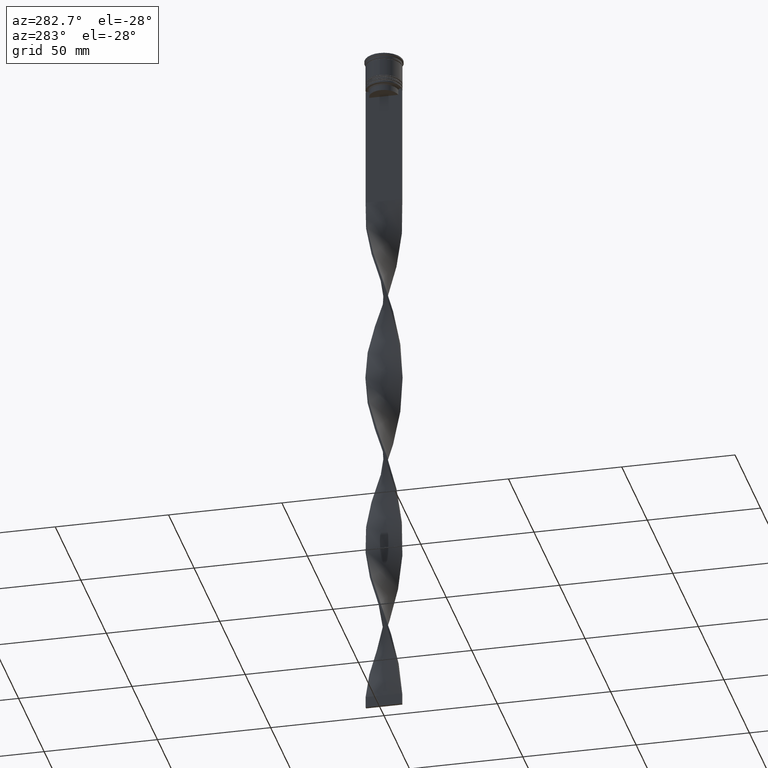
[diagram: clean part render]
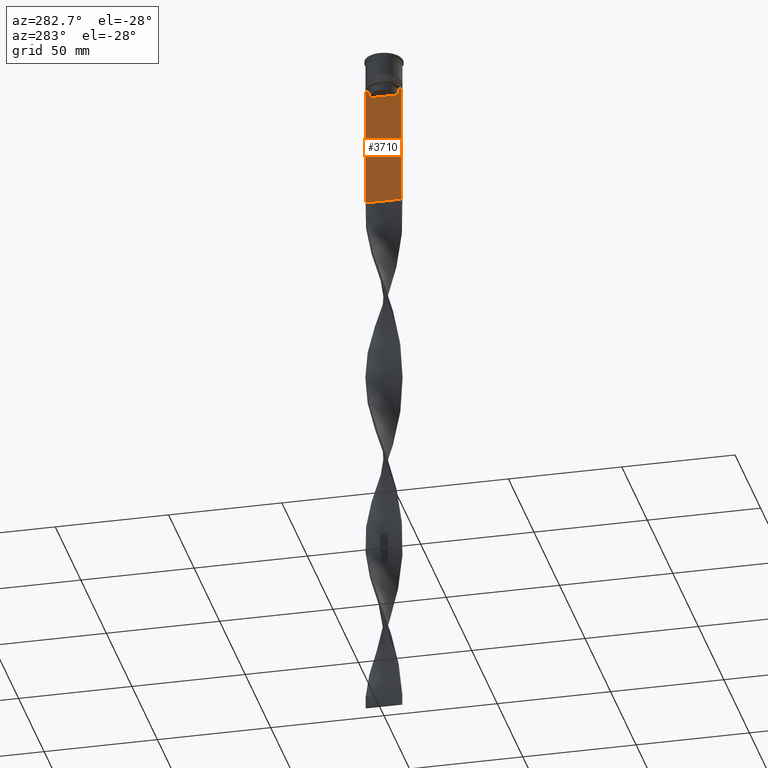
[diagram: same view with one face highlighted and labeled with its STEP entity id]
A machine part, auxiliary view. The second image highlights one B-rep face of the part: STEP entity #3710.
In plain terms, the highlighted planar face has unit normal (-1, 0, 0).
Its self-contained STEP definition (entity closure, byte-faithful):
#54 = CARTESIAN_POINT ( 'NONE',  ( -0.4999999999999998890, -8.000000000000003553, 2.031219541881394530 ) ) ;
#89 = LINE ( 'NONE', #3666, #294 ) ;
#97 = VERTEX_POINT ( 'NONE', #2014 ) ;
#131 = ORIENTED_EDGE ( 'NONE', *, *, #2130, .F. ) ;
#224 = VECTOR ( 'NONE', #3896, 1000.000000000000000 ) ;
#275 = EDGE_CURVE ( 'NONE', #740, #2712, #3811, .T. ) ;
#294 = VECTOR ( 'NONE', #401, 1000.000000000000000 ) ;
#313 = DIRECTION ( 'NONE',  ( 0.000000000000000000, -1.000000000000000000, 0.000000000000000000 ) ) ;
#376 = CARTESIAN_POINT ( 'NONE',  ( -0.4999999999999998890, -6.881860213634098500, -14.00000000000000178 ) ) ;
#401 = DIRECTION ( 'NONE',  ( 0.000000000000000000, 0.000000000000000000, -1.000000000000000000 ) ) ;
#433 = VERTEX_POINT ( 'NONE', #3204 ) ;
#489 = CARTESIAN_POINT ( 'NONE',  ( -0.4999999999999998890, -6.714736947305992132, -14.16668390685738999 ) ) ;
#510 = CARTESIAN_POINT ( 'NONE',  ( -0.4999999999999998890, 6.547597841304911626, -14.33335192459222718 ) ) ;
#529 = DIRECTION ( 'NONE',  ( -0.000000000000000000, -0.000000000000000000, 1.000000000000000000 ) ) ;
#652 = VERTEX_POINT ( 'NONE', #3047 ) ;
#657 = CARTESIAN_POINT ( 'NONE',  ( -0.4999999999999998890, 7.999999999999996447, -68.00000000000000000 ) ) ;
#676 = ORIENTED_EDGE ( 'NONE', *, *, #725, .F. ) ;
#725 = EDGE_CURVE ( 'NONE', #2712, #3300, #1589, .T. ) ;
#740 = VERTEX_POINT ( 'NONE', #376 ) ;
#743 = PLANE ( 'NONE',  #3954 ) ;
#770 = DIRECTION ( 'NONE',  ( -1.000000000000000000, 0.000000000000000000, 0.000000000000000000 ) ) ;
#800 = VERTEX_POINT ( 'NONE', #2883 ) ;
#834 = EDGE_CURVE ( 'NONE', #97, #433, #89, .T. ) ;
#852 = DIRECTION ( 'NONE',  ( 0.000000000000000000, -1.000000000000000000, 0.000000000000000000 ) ) ;
#871 = EDGE_CURVE ( 'NONE', #3300, #997, #1666, .T. ) ;
#900 = EDGE_CURVE ( 'NONE', #800, #2819, #3252, .T. ) ;
#964 = CARTESIAN_POINT ( 'NONE',  ( -0.4999999999999998890, 7.999999999999996447, 2.031219541881394530 ) ) ;
#992 = EDGE_CURVE ( 'NONE', #997, #2318, #3274, .T. ) ;
#997 = VERTEX_POINT ( 'NONE', #1360 ) ;
#1000 = DIRECTION ( 'NONE',  ( 0.000000000000000000, 1.000000000000000000, 0.000000000000000000 ) ) ;
#1049 = CARTESIAN_POINT ( 'NONE',  ( -0.4999999999999998890, -8.000000000000003553, 2.031219541881394530 ) ) ;
#1093 = CARTESIAN_POINT ( 'NONE',  ( -0.4999999999999998890, -6.380438856379708312, -14.50000000000000000 ) ) ;
#1100 = CARTESIAN_POINT ( 'NONE',  ( -0.4999999999999998890, 7.884161337770806632, -14.00000000000000178 ) ) ;
#1149 = VECTOR ( 'NONE', #313, 1000.000000000000000 ) ;
#1177 = CARTESIAN_POINT ( 'NONE',  ( -0.4999999999999998890, -8.000000000000003553, -14.00000000000000178 ) ) ;
#1314 = FACE_OUTER_BOUND ( 'NONE', #3007, .T. ) ;
#1360 = CARTESIAN_POINT ( 'NONE',  ( -0.4999999999999998890, -8.000000000000003553, -68.00000000000000000 ) ) ;
#1400 = CARTESIAN_POINT ( 'NONE',  ( -0.4999999999999998890, -8.000000000000003553, -68.00000000000000000 ) ) ;
#1554 = ORIENTED_EDGE ( 'NONE', *, *, #1816, .F. ) ;
#1563 = ORIENTED_EDGE ( 'NONE', *, *, #275, .F. ) ;
#1586 = CARTESIAN_POINT ( 'NONE',  ( -0.4999999999999998890, -6.380438856379708312, -14.50000000000000000 ) ) ;
#1589 = LINE ( 'NONE', #1661, #224 ) ;
#1661 = CARTESIAN_POINT ( 'NONE',  ( -0.4999999999999998890, -8.000000000000003553, -14.00000000000000178 ) ) ;
#1666 = LINE ( 'NONE', #1049, #2676 ) ;
#1669 = ORIENTED_EDGE ( 'NONE', *, *, #871, .F. ) ;
#1756 = EDGE_CURVE ( 'NONE', #2186, #740, #2654, .T. ) ;
#1810 = DIRECTION ( 'NONE',  ( 0.000000000000000000, 0.000000000000000000, -1.000000000000000000 ) ) ;
#1816 = EDGE_CURVE ( 'NONE', #652, #97, #2170, .T. ) ;
#1852 = EDGE_CURVE ( 'NONE', #2060, #2186, #2115, .T. ) ;
#1899 = LINE ( 'NONE', #3156, #1149 ) ;
#2014 = CARTESIAN_POINT ( 'NONE',  ( -0.4999999999999998890, 6.380438856379708312, -14.50000000000000000 ) ) ;
#2060 = VERTEX_POINT ( 'NONE', #2765 ) ;
#2115 = LINE ( 'NONE', #2133, #2864 ) ;
#2130 = EDGE_CURVE ( 'NONE', #433, #2060, #1899, .T. ) ;
#2133 = CARTESIAN_POINT ( 'NONE',  ( -0.4999999999999998890, -6.380438856379708312, 0.000000000000000000 ) ) ;
#2163 = VECTOR ( 'NONE', #1810, 1000.000000000000000 ) ;
#2170 = B_SPLINE_CURVE_WITH_KNOTS ( 'NONE', 3,
 ( #2745, #4019, #510, #3075 ),
 .UNSPECIFIED., .F., .F.,
 ( 4, 4 ),
 ( 0.01172465562756038263, 0.01243276816391822651 ),
 .UNSPECIFIED. ) ;
#2186 = VERTEX_POINT ( 'NONE', #1586 ) ;
#2318 = VERTEX_POINT ( 'NONE', #657 ) ;
#2351 = DIRECTION ( 'NONE',  ( 0.000000000000000000, 0.000000000000000000, -1.000000000000000000 ) ) ;
#2444 = LINE ( 'NONE', #3703, #2744 ) ;
#2481 = VECTOR ( 'NONE', #2670, 1000.000000000000000 ) ;
#2519 = ORIENTED_EDGE ( 'NONE', *, *, #834, .F. ) ;
#2533 = LINE ( 'NONE', #964, #2163 ) ;
#2551 = CARTESIAN_POINT ( 'NONE',  ( -0.4999999999999998890, -7.884161337770806632, -14.00000000000000178 ) ) ;
#2574 = ORIENTED_EDGE ( 'NONE', *, *, #900, .F. ) ;
#2590 = EDGE_CURVE ( 'NONE', #2819, #652, #2444, .T. ) ;
#2616 = ORIENTED_EDGE ( 'NONE', *, *, #2730, .T. ) ;
#2633 = CARTESIAN_POINT ( 'NONE',  ( -0.4999999999999998890, -8.000000000000003553, -14.00000000000000178 ) ) ;
#2654 = B_SPLINE_CURVE_WITH_KNOTS ( 'NONE', 3,
 ( #1093, #3648, #489, #2708 ),
 .UNSPECIFIED., .F., .F.,
 ( 4, 4 ),
 ( 0.02996184199614749730, 0.03067452609193703841 ),
 .UNSPECIFIED. ) ;
#2670 = DIRECTION ( 'NONE',  ( 0.000000000000000000, -1.000000000000000000, 0.000000000000000000 ) ) ;
#2676 = VECTOR ( 'NONE', #2351, 1000.000000000000000 ) ;
#2708 = CARTESIAN_POINT ( 'NONE',  ( -0.4999999999999998890, -6.881860213634098500, -14.00000000000000178 ) ) ;
#2712 = VERTEX_POINT ( 'NONE', #2551 ) ;
#2730 = EDGE_CURVE ( 'NONE', #800, #2318, #2533, .T. ) ;
#2744 = VECTOR ( 'NONE', #852, 1000.000000000000000 ) ;
#2745 = CARTESIAN_POINT ( 'NONE',  ( -0.4999999999999998890, 6.881860213634098500, -14.00000000000000178 ) ) ;
#2765 = CARTESIAN_POINT ( 'NONE',  ( -0.4999999999999998890, -6.380438856379708312, -17.00000000000000000 ) ) ;
#2801 = VECTOR ( 'NONE', #1000, 1000.000000000000000 ) ;
#2808 = DIRECTION ( 'NONE',  ( 0.000000000000000000, -1.000000000000000000, 0.000000000000000000 ) ) ;
#2819 = VERTEX_POINT ( 'NONE', #1100 ) ;
#2864 = VECTOR ( 'NONE', #529, 1000.000000000000000 ) ;
#2883 = CARTESIAN_POINT ( 'NONE',  ( -0.4999999999999998890, 7.999999999999996447, -14.00000000000000178 ) ) ;
#3007 = EDGE_LOOP ( 'NONE', ( #1554, #3517, #2574, #2616, #3593, #1669, #676, #1563, #4000, #3291, #131, #2519 ) ) ;
#3047 = CARTESIAN_POINT ( 'NONE',  ( -0.4999999999999998890, 6.881860213634098500, -14.00000000000000178 ) ) ;
#3075 = CARTESIAN_POINT ( 'NONE',  ( -0.4999999999999998890, 6.380438856379708312, -14.50000000000000000 ) ) ;
#3156 = CARTESIAN_POINT ( 'NONE',  ( -0.4999999999999998890, 6.399999999999999467, -17.00000000000000000 ) ) ;
#3204 = CARTESIAN_POINT ( 'NONE',  ( -0.4999999999999998890, 6.380438856379708312, -17.00000000000000000 ) ) ;
#3252 = LINE ( 'NONE', #2633, #2481 ) ;
#3274 = LINE ( 'NONE', #1400, #2801 ) ;
#3291 = ORIENTED_EDGE ( 'NONE', *, *, #1852, .F. ) ;
#3300 = VERTEX_POINT ( 'NONE', #1177 ) ;
#3497 = CARTESIAN_POINT ( 'NONE',  ( -0.4999999999999998890, -8.000000000000003553, -14.00000000000000178 ) ) ;
#3517 = ORIENTED_EDGE ( 'NONE', *, *, #2590, .F. ) ;
#3569 = DIRECTION ( 'NONE',  ( 0.000000000000000000, 0.000000000000000000, 1.000000000000000000 ) ) ;
#3593 = ORIENTED_EDGE ( 'NONE', *, *, #992, .F. ) ;
#3648 = CARTESIAN_POINT ( 'NONE',  ( -0.4999999999999998890, -6.547597841511246131, -14.33335192438652328 ) ) ;
#3666 = CARTESIAN_POINT ( 'NONE',  ( -0.4999999999999998890, 6.380438856379708312, 0.000000000000000000 ) ) ;
#3703 = CARTESIAN_POINT ( 'NONE',  ( -0.4999999999999998890, -8.000000000000003553, -14.00000000000000178 ) ) ;
#3710 = ADVANCED_FACE ( 'NONE', ( #1314 ), #743, .T. ) ;
#3799 = VECTOR ( 'NONE', #2808, 1000.000000000000000 ) ;
#3811 = LINE ( 'NONE', #3497, #3799 ) ;
#3896 = DIRECTION ( 'NONE',  ( 0.000000000000000000, -1.000000000000000000, 0.000000000000000000 ) ) ;
#3954 = AXIS2_PLACEMENT_3D ( 'NONE', #54, #770, #3569 ) ;
#4000 = ORIENTED_EDGE ( 'NONE', *, *, #1756, .F. ) ;
#4019 = CARTESIAN_POINT ( 'NONE',  ( -0.4999999999999998890, 6.714736947114692711, -14.16668390704818847 ) ) ;